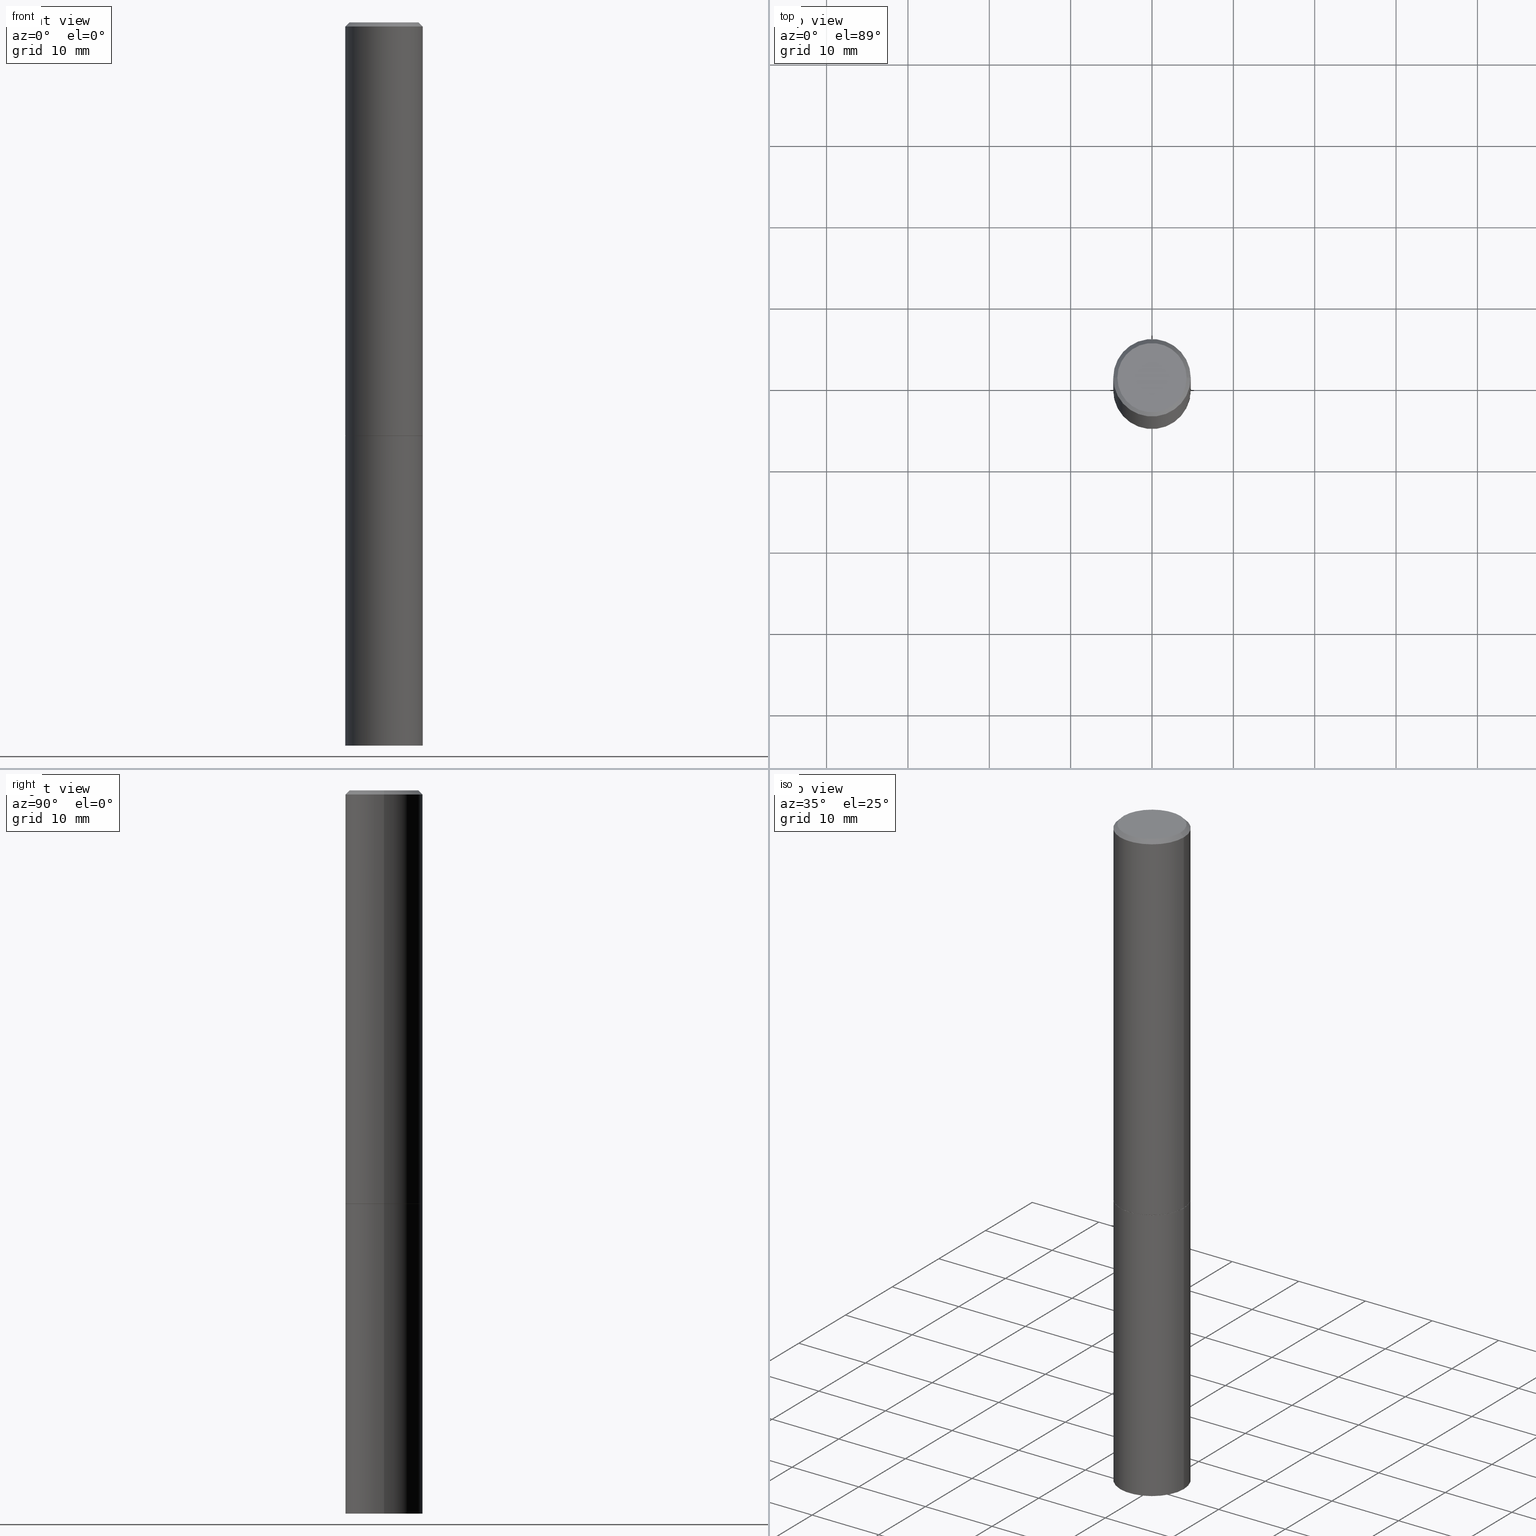
[diagram: canonical four-view strip — front | top / right | iso, engineering-drawing reading convention]
A machine part, canonical four-view strip (front | top / right | iso — engineering-drawing reading convention). The complete STEP part file that produces these views, byte-faithful:
ISO-10303-21;
HEADER;
FILE_DESCRIPTION (( 'STEP AP203' ),
    '1' );
FILE_NAME ('77163.STEP',
    '2024-02-29T15:28:20',
    ( '' ),
    ( '' ),
    'SwSTEP 2.0',
    'SolidWorks 2023',
    '' );
FILE_SCHEMA (( 'CONFIG_CONTROL_DESIGN' ));
ENDSEC;

DATA;
#1 = DIRECTION ( 'NONE',  ( -2.445468806185136597E-29, 3.491481338843145583E-15, 1.000000000000000000 ) ) ;
#2 = DIRECTION ( 'NONE',  ( -2.445468806185136597E-29, 3.491481338843145583E-15, 1.000000000000000000 ) ) ;
#3 = CC_DESIGN_PERSON_AND_ORGANIZATION_ASSIGNMENT ( #56, #94, ( #172 ) ) ;
#4 = DIRECTION ( 'NONE',  ( 1.000000000000000000, -6.982962677686265922E-15, 0.000000000000000000 ) ) ;
#5 = DATE_AND_TIME ( #126, #216 ) ;
#6 = ADVANCED_FACE ( 'NONE', ( #211 ), #263, .T. ) ;
#7 = DIRECTION ( 'NONE',  ( -2.438088387897960049E-29, 3.491481338843145188E-15, 1.000000000000000000 ) ) ;
#8 = CLOSED_SHELL ( 'NONE', ( #37, #294, #266, #242 ) ) ;
#9 = CC_DESIGN_SECURITY_CLASSIFICATION ( #156, ( #172 ) ) ;
#10 = EDGE_LOOP ( 'NONE', ( #83, #267, #236, #87 ) ) ;
#11 = DIRECTION ( 'NONE',  ( -2.445468806185136597E-29, 3.491481338843145583E-15, 1.000000000000000000 ) ) ;
#12 = CARTESIAN_POINT ( 'NONE',  ( 4.890937612370283668E-31, -6.982962677686305168E-17, -0.02000000000000004205 ) ) ;
#13 = EDGE_LOOP ( 'NONE', ( #100, #41, #136, #193 ) ) ;
#14 = PLANE ( 'NONE',  #116 ) ;
#15 = CIRCLE ( 'NONE', #238, 0.1865000000000000546 ) ;
#16 = CC_DESIGN_DATE_AND_TIME_ASSIGNMENT ( #189, #280, ( #156 ) ) ;
#17 = CIRCLE ( 'NONE', #26, 0.1875000000000000278 ) ;
#18 = CC_DESIGN_APPROVAL ( #25, ( #172 ) ) ;
#19 = DIRECTION ( 'NONE',  ( -2.445468806185136597E-29, 3.491481338843145583E-15, 1.000000000000000000 ) ) ;
#20 = ORIENTED_EDGE ( 'NONE', *, *, #158, .F. ) ;
#21 = APPROVAL_STATUS ( 'not_yet_approved' ) ;
#22 = EDGE_CURVE ( 'NONE', #324, #35, #128, .T. ) ;
#23 = CLOSED_SHELL ( 'NONE', ( #129, #360, #135, #6, #284, #235, #309, #42 ) ) ;
#24 = CARTESIAN_POINT ( 'NONE',  ( 0.1874999999999998890, -1.309305502066174022E-15, 9.142831454617374006E-30 ) ) ;
#25 = APPROVAL ( #363, 'UNSPECIFIED' ) ;
#26 = AXIS2_PLACEMENT_3D ( 'NONE', #350, #265, #124 ) ;
#27 = PRODUCT ( '77163', '77163', '', ( #338 ) ) ;
#28 = PERSON_AND_ORGANIZATION_ROLE ( 'classification_officer' ) ;
#29 = DIRECTION ( 'NONE',  ( -1.000000000000000000, 6.982962677686265133E-15, 0.000000000000000000 ) ) ;
#30 = VERTEX_POINT ( 'NONE', #49 ) ;
#31 = SHAPE_DEFINITION_REPRESENTATION ( #353, #256 ) ;
#32 = VECTOR ( 'NONE', #174, 39.37007874015748143 ) ;
#33 = LOCAL_TIME ( 10, 28, 20.00000000000000000, #167 ) ;
#34 = CARTESIAN_POINT ( 'NONE',  ( 4.890937612370273194E-29, -6.982962677686291165E-15, -2.000000000000000000 ) ) ;
#35 = VERTEX_POINT ( 'NONE', #140 ) ;
#36 = DIRECTION ( 'NONE',  ( 1.000000000000000000, -6.982962677686265922E-15, 4.876176775795935793E-29 ) ) ;
#37 = ADVANCED_FACE ( 'NONE', ( #109 ), #163, .T. ) ;
#38 = CARTESIAN_POINT ( 'NONE',  ( -0.1874999999999997502, 1.239475875289309935E-15, -0.02000000000000004205 ) ) ;
#39 = AXIS2_PLACEMENT_3D ( 'NONE', #159, #133, #102 ) ;
#40 = ORGANIZATION ( 'UNSPECIFIED', 'UNSPECIFIED', '' ) ;
#41 = ORIENTED_EDGE ( 'NONE', *, *, #272, .T. ) ;
#42 = ADVANCED_FACE ( 'NONE', ( #143 ), #278, .F. ) ;
#43 = ORIENTED_EDGE ( 'NONE', *, *, #180, .F. ) ;
#44 = DIRECTION ( 'NONE',  ( 1.000000000000000000, -6.982962677686265133E-15, 0.000000000000000000 ) ) ;
#45 = ORIENTED_EDGE ( 'NONE', *, *, #348, .T. ) ;
#46 = DIRECTION ( 'NONE',  ( 2.438088387897960049E-29, -3.491481338843145188E-15, -1.000000000000000000 ) ) ;
#47 = APPROVAL_ROLE ( '' ) ;
#48 = CIRCLE ( 'NONE', #268, 0.1874999999999997502 ) ;
#49 = CARTESIAN_POINT ( 'NONE',  ( 0.1875000000000000278, -1.352949018801718277E-14, -3.500000000000000000 ) ) ;
#50 = LINE ( 'NONE', #310, #254 ) ;
#51 = CARTESIAN_POINT ( 'NONE',  ( 0.1674999999999997602, -1.252653207992876711E-15, 4.268512490108880748E-18 ) ) ;
#52 = DIRECTION ( 'NONE',  ( 0.7071067811864147901, -2.468850131080866299E-15, 0.7071067811866802444 ) ) ;
#53 = DIRECTION ( 'NONE',  ( 1.000000000000000000, 0.000000000000000000, 0.000000000000000000 ) ) ;
#54 = MANIFOLD_SOLID_BREP ( 'Body-Move/Copy2[2]', #23 ) ;
#55 = AXIS2_PLACEMENT_3D ( 'NONE', #228, #219, #355 ) ;
#56 = PERSON_AND_ORGANIZATION ( #110, #40 ) ;
#57 = DIRECTION ( 'NONE',  ( 1.000000000000000000, -6.982962677686265922E-15, 0.000000000000000000 ) ) ;
#58 = EDGE_CURVE ( 'NONE', #346, #130, #134, .T. ) ;
#59 = ORIENTED_EDGE ( 'NONE', *, *, #168, .F. ) ;
#60 = ORIENTED_EDGE ( 'NONE', *, *, #123, .F. ) ;
#61 = CARTESIAN_POINT ( 'NONE',  ( 4.890937612370283668E-31, -6.982962677686305168E-17, -0.02000000000000004205 ) ) ;
#62 = AXIS2_PLACEMENT_3D ( 'NONE', #185, #288, #225 ) ;
#63 =( GEOMETRIC_REPRESENTATION_CONTEXT ( 3 ) GLOBAL_UNCERTAINTY_ASSIGNED_CONTEXT ( ( #95 ) ) GLOBAL_UNIT_ASSIGNED_CONTEXT ( ( #113, #358, #149 ) ) REPRESENTATION_CONTEXT ( 'NONE', 'WORKASPACE' ) );
#64 = CARTESIAN_POINT ( 'NONE',  ( 4.890937612370283668E-31, -6.982962677686305168E-17, -0.02000000000000004205 ) ) ;
#65 = VERTEX_POINT ( 'NONE', #352 ) ;
#66 = DIRECTION ( 'NONE',  ( -2.445468806185136597E-29, 3.491481338843145583E-15, 1.000000000000000000 ) ) ;
#67 = PRODUCT_RELATED_PRODUCT_CATEGORY ( 'detail', '', ( #27 ) ) ;
#68 = ORIENTED_EDGE ( 'NONE', *, *, #176, .T. ) ;
#69 = CARTESIAN_POINT ( 'NONE',  ( -1.043851414335219820E-46, 1.490343170380447200E-32, 4.268512490100411279E-18 ) ) ;
#70 = FACE_OUTER_BOUND ( 'NONE', #317, .T. ) ;
#71 = CIRCLE ( 'NONE', #281, 0.1875000000000000278 ) ;
#72 = DIRECTION ( 'NONE',  ( -2.445468806185136597E-29, 3.491481338843145583E-15, 1.000000000000000000 ) ) ;
#73 = CC_DESIGN_PERSON_AND_ORGANIZATION_ASSIGNMENT ( #345, #177, ( #172 ) ) ;
#74 = ORIENTED_EDGE ( 'NONE', *, *, #248, .T. ) ;
#75 = DIRECTION ( 'NONE',  ( 1.000000000000000000, -6.982962677686265133E-15, 0.000000000000000000 ) ) ;
#76 = DIRECTION ( 'NONE',  ( 2.438088387897960049E-29, -3.491481338843145188E-15, -1.000000000000000000 ) ) ;
#77 = APPLICATION_CONTEXT ( 'configuration controlled 3d designs of mechanical parts and assemblies' ) ;
#78 = PERSON_AND_ORGANIZATION ( #110, #40 ) ;
#79 = EDGE_CURVE ( 'NONE', #112, #346, #201, .T. ) ;
#80 = AXIS2_PLACEMENT_3D ( 'NONE', #286, #323, #4 ) ;
#81 = DATE_AND_TIME ( #337, #122 ) ;
#82 = DATE_AND_TIME ( #232, #33 ) ;
#83 = ORIENTED_EDGE ( 'NONE', *, *, #22, .F. ) ;
#84 = CC_DESIGN_PERSON_AND_ORGANIZATION_ASSIGNMENT ( #285, #28, ( #156 ) ) ;
#85 = CARTESIAN_POINT ( 'NONE',  ( 0.1865000000000000546, -8.285285217074779370E-15, -2.000000000000000000 ) ) ;
#86 = ORIENTED_EDGE ( 'NONE', *, *, #289, .F. ) ;
#87 = ORIENTED_EDGE ( 'NONE', *, *, #289, .T. ) ;
#88 = DIRECTION ( 'NONE',  ( -2.445468806185136597E-29, 3.491481338843145583E-15, 1.000000000000000000 ) ) ;
#89 = CONICAL_SURFACE ( 'NONE', #196, 0.1874999999999997502, 0.7853981633974469467 ) ;
#90 = APPROVAL_PERSON_ORGANIZATION ( #253, #25, #47 ) ;
#91 = DIMENSIONAL_EXPONENTS ( 1.000000000000000000, 0.000000000000000000, 0.000000000000000000, 0.000000000000000000, 0.000000000000000000, 0.000000000000000000, 0.000000000000000000 ) ;
#92 = EDGE_LOOP ( 'NONE', ( #292, #329 ) ) ;
#93 = CARTESIAN_POINT ( 'NONE',  ( -0.1874999999999997502, 1.239475875289309935E-15, -0.02000000000000004205 ) ) ;
#94 = PERSON_AND_ORGANIZATION_ROLE ( 'design_supplier' ) ;
#95 = UNCERTAINTY_MEASURE_WITH_UNIT (LENGTH_MEASURE( 1.000000000000000082E-05 ), #113, 'distance_accuracy_value', 'NONE');
#96 = DIRECTION ( 'NONE',  ( 1.000000000000000000, -6.982962677686265922E-15, 4.875936752492899929E-29 ) ) ;
#97 = AXIS2_PLACEMENT_3D ( 'NONE', #114, #76, #334 ) ;
#98 = CC_DESIGN_PERSON_AND_ORGANIZATION_ASSIGNMENT ( #335, #250, ( #27 ) ) ;
#99 = VERTEX_POINT ( 'NONE', #244 ) ;
#100 = ORIENTED_EDGE ( 'NONE', *, *, #168, .T. ) ;
#101 = VERTEX_POINT ( 'NONE', #160 ) ;
#102 = DIRECTION ( 'NONE',  ( 1.000000000000000000, -6.982962677686266711E-15, 0.000000000000000000 ) ) ;
#103 = CARTESIAN_POINT ( 'NONE',  ( -0.1865000000000000546, -5.652502021145481134E-15, -2.000000000000000000 ) ) ;
#104 = LINE ( 'NONE', #38, #366 ) ;
#105 = PRODUCT_DEFINITION ( 'UNKNOWN', '', #172, #316 ) ;
#106 = ORIENTED_EDGE ( 'NONE', *, *, #318, .T. ) ;
#107 = DIRECTION ( 'NONE',  ( -2.445468806185136597E-29, 3.491481338843145583E-15, 1.000000000000000000 ) ) ;
#108 = CIRCLE ( 'NONE', #312, 0.1674999999999997602 ) ;
#109 = FACE_OUTER_BOUND ( 'NONE', #296, .T. ) ;
#110 = PERSON ( 'UNSPECIFIED', 'UNSPECIFIED', 'UNSPECIFIED', ('UNSPECIFIED'), ('UNSPECIFIED'), ('UNSPECIFIED') ) ;
#112 = VERTEX_POINT ( 'NONE', #103 ) ;
#111 = APPLICATION_PROTOCOL_DEFINITION ( 'international standard', 'config_control_design', 1994, #77 ) ;
#113 =( CONVERSION_BASED_UNIT ( 'INCH', #255 ) LENGTH_UNIT ( ) NAMED_UNIT ( #91 ) );
#114 = CARTESIAN_POINT ( 'NONE',  ( 1.169646248512447820E-15, 0.1674999999999997602, -5.826888680111757675E-16 ) ) ;
#115 = EDGE_CURVE ( 'NONE', #99, #324, #188, .T. ) ;
#116 = AXIS2_PLACEMENT_3D ( 'NONE', #141, #46, #249 ) ;
#117 = CARTESIAN_POINT ( 'NONE',  ( -0.1875000000000000278, 1.332267629550188046E-15, -9.223003294227947991E-30 ) ) ;
#118 = FACE_OUTER_BOUND ( 'NONE', #145, .T. ) ;
#119 = LINE ( 'NONE', #24, #127 ) ;
#120 = EDGE_CURVE ( 'NONE', #65, #347, #271, .T. ) ;
#121 = CIRCLE ( 'NONE', #320, 0.1874999999999997502 ) ;
#122 = LOCAL_TIME ( 10, 28, 20.00000000000000000, #230 ) ;
#123 = EDGE_CURVE ( 'NONE', #324, #99, #108, .T. ) ;
#124 = DIRECTION ( 'NONE',  ( 1.000000000000000000, -6.982962677686266711E-15, 0.000000000000000000 ) ) ;
#125 = CARTESIAN_POINT ( 'NONE',  ( 0.1875000000000000278, -8.288776698413622377E-15, -1.998999999999999666 ) ) ;
#126 = CALENDAR_DATE ( 2024, 29, 2 ) ;
#127 = VECTOR ( 'NONE', #252, 39.37007874015748143 ) ;
#128 = LINE ( 'NONE', #154, #336 ) ;
#129 = ADVANCED_FACE ( 'NONE', ( #261 ), #215, .T. ) ;
#130 = VERTEX_POINT ( 'NONE', #125 ) ;
#131 = CARTESIAN_POINT ( 'NONE',  ( 4.890937612370272633E-29, -6.982962677686290376E-15, -1.999999999999999778 ) ) ;
#132 = CIRCLE ( 'NONE', #234, 0.1875000000000000278 ) ;
#133 = DIRECTION ( 'NONE',  ( -2.445468806185136597E-29, 3.491481338843145583E-15, 1.000000000000000000 ) ) ;
#134 = LINE ( 'NONE', #197, #356 ) ;
#135 = ADVANCED_FACE ( 'NONE', ( #181 ), #89, .T. ) ;
#136 = ORIENTED_EDGE ( 'NONE', *, *, #318, .F. ) ;
#137 = PLANE ( 'NONE',  #55 ) ;
#138 = EDGE_LOOP ( 'NONE', ( #59, #290 ) ) ;
#139 = CYLINDRICAL_SURFACE ( 'NONE', #258, 0.1874999999999998890 ) ;
#140 = CARTESIAN_POINT ( 'NONE',  ( 0.1874999999999997502, -1.356173001359023494E-15, -0.02000000000000004205 ) ) ;
#141 = CARTESIAN_POINT ( 'NONE',  ( 1.309305502066260600E-15, 0.1874999999999877875, -3.500000000000000444 ) ) ;
#142 = AXIS2_PLACEMENT_3D ( 'NONE', #297, #169, #327 ) ;
#143 = FACE_OUTER_BOUND ( 'NONE', #359, .T. ) ;
#145 = EDGE_LOOP ( 'NONE', ( #106, #351, #331, #164 ) ) ;
#144 = CALENDAR_DATE ( 2024, 29, 2 ) ;
#146 = CARTESIAN_POINT ( 'NONE',  ( -0.1875000000000000278, -8.269306052268462011E-15, -1.999999999999999778 ) ) ;
#147 = DATE_TIME_ROLE ( 'creation_date' ) ;
#148 = AXIS2_PLACEMENT_3D ( 'NONE', #155, #66, #179 ) ;
#149 =( NAMED_UNIT ( * ) SI_UNIT ( $, .STERADIAN. ) SOLID_ANGLE_UNIT ( ) );
#150 = CC_DESIGN_DATE_AND_TIME_ASSIGNMENT ( #81, #147, ( #105 ) ) ;
#151 = CARTESIAN_POINT ( 'NONE',  ( -1.043851414335219820E-46, 1.490343170380447200E-32, 4.268512490100411279E-18 ) ) ;
#152 = LOCAL_TIME ( 10, 28, 20.00000000000000000, #210 ) ;
#153 = DIRECTION ( 'NONE',  ( -2.445468806185136597E-29, 3.491481338843145583E-15, 1.000000000000000000 ) ) ;
#154 = CARTESIAN_POINT ( 'NONE',  ( 0.1874999999999997502, -1.356173001359023494E-15, -0.02000000000000004205 ) ) ;
#155 = CARTESIAN_POINT ( 'NONE',  ( 8.559140821647976968E-29, -1.222018468595100934E-14, -3.500000000000000000 ) ) ;
#156 = SECURITY_CLASSIFICATION ( '', '', #233 ) ;
#157 = DIRECTION ( 'NONE',  ( -2.445468806185136597E-29, 3.491481338843145583E-15, 1.000000000000000000 ) ) ;
#158 = EDGE_CURVE ( 'NONE', #101, #347, #328, .T. ) ;
#159 = CARTESIAN_POINT ( 'NONE',  ( 4.888492143564087030E-29, -6.979471196347446580E-15, -1.998999999999999666 ) ) ;
#160 = CARTESIAN_POINT ( 'NONE',  ( 0.1875000000000000278, -8.292268179752465385E-15, -1.999999999999999778 ) ) ;
#161 = FACE_OUTER_BOUND ( 'NONE', #214, .T. ) ;
#162 = ORIENTED_EDGE ( 'NONE', *, *, #180, .T. ) ;
#163 = CYLINDRICAL_SURFACE ( 'NONE', #184, 0.1875000000000000278 ) ;
#164 = ORIENTED_EDGE ( 'NONE', *, *, #348, .F. ) ;
#165 = AXIS2_PLACEMENT_3D ( 'NONE', #131, #153, #343 ) ;
#166 = DIRECTION ( 'NONE',  ( -0.7071067811864147901, 7.493145998869874533E-15, 0.7071067811866802444 ) ) ;
#167 = COORDINATED_UNIVERSAL_TIME_OFFSET ( 5, 0, .BEHIND. ) ;
#168 = EDGE_CURVE ( 'NONE', #346, #112, #15, .T. ) ;
#169 = DIRECTION ( 'NONE',  ( -2.445468806185136597E-29, 3.491481338843145583E-15, 1.000000000000000000 ) ) ;
#170 = EDGE_CURVE ( 'NONE', #347, #101, #17, .T. ) ;
#171 = CYLINDRICAL_SURFACE ( 'NONE', #264, 0.1874999999999998890 ) ;
#172 = PRODUCT_DEFINITION_FORMATION_WITH_SPECIFIED_SOURCE ( 'ANY', '', #27, .NOT_KNOWN. ) ;
#173 =( LENGTH_UNIT ( ) NAMED_UNIT ( * ) SI_UNIT ( $, .METRE. ) );
#174 = DIRECTION ( 'NONE',  ( -2.445468806185136877E-29, 3.491481338843145188E-15, 1.000000000000000000 ) ) ;
#175 = VECTOR ( 'NONE', #166, 39.37007874015748143 ) ;
#176 = EDGE_CURVE ( 'NONE', #30, #65, #302, .T. ) ;
#177 = PERSON_AND_ORGANIZATION_ROLE ( 'creator' ) ;
#178 = DIRECTION ( 'NONE',  ( 1.000000000000000000, -6.982962677686265922E-15, 0.000000000000000000 ) ) ;
#179 = DIRECTION ( 'NONE',  ( 1.000000000000000000, -6.982962677686261189E-15, 0.000000000000000000 ) ) ;
#180 = EDGE_CURVE ( 'NONE', #298, #130, #132, .T. ) ;
#181 = FACE_OUTER_BOUND ( 'NONE', #243, .T. ) ;
#182 = DIRECTION ( 'NONE',  ( 2.445468806185136597E-29, -3.491481338843145583E-15, -1.000000000000000000 ) ) ;
#183 = ORIENTED_EDGE ( 'NONE', *, *, #325, .T. ) ;
#184 = AXIS2_PLACEMENT_3D ( 'NONE', #220, #301, #229 ) ;
#185 = CARTESIAN_POINT ( 'NONE',  ( 0.000000000000000000, 0.000000000000000000, 0.000000000000000000 ) ) ;
#186 = APPROVAL_DATE_TIME ( #5, #205 ) ;
#187 = DIRECTION ( 'NONE',  ( 1.000000000000000000, -6.982962677686265922E-15, 4.875936752492899929E-29 ) ) ;
#188 = CIRCLE ( 'NONE', #339, 0.1674999999999997602 ) ;
#189 = DATE_AND_TIME ( #204, #152 ) ;
#190 = ORIENTED_EDGE ( 'NONE', *, *, #342, .T. ) ;
#191 = LINE ( 'NONE', #295, #175 ) ;
#192 = CARTESIAN_POINT ( 'NONE',  ( 4.890937612370283668E-31, -6.982962677686305168E-17, -0.02000000000000004205 ) ) ;
#193 = ORIENTED_EDGE ( 'NONE', *, *, #58, .F. ) ;
#194 = APPROVAL ( #21, 'UNSPECIFIED' ) ;
#195 = PERSON_AND_ORGANIZATION ( #110, #40 ) ;
#196 = AXIS2_PLACEMENT_3D ( 'NONE', #64, #217, #287 ) ;
#197 = CARTESIAN_POINT ( 'NONE',  ( 0.1865000000000000546, -8.285285217074779370E-15, -2.000000000000000000 ) ) ;
#198 = LINE ( 'NONE', #203, #344 ) ;
#199 = APPROVAL_DATE_TIME ( #82, #25 ) ;
#200 = DIRECTION ( 'NONE',  ( 0.000000000000000000, 0.000000000000000000, 1.000000000000000000 ) ) ;
#201 = CIRCLE ( 'NONE', #142, 0.1865000000000000546 ) ;
#202 = APPROVAL_PERSON_ORGANIZATION ( #78, #194, #304 ) ;
#203 = CARTESIAN_POINT ( 'NONE',  ( 0.1875000000000000278, -1.309305502066175008E-15, 9.142831454617381013E-30 ) ) ;
#204 = CALENDAR_DATE ( 2024, 29, 2 ) ;
#205 = APPROVAL ( #259, 'UNSPECIFIED' ) ;
#206 = ORIENTED_EDGE ( 'NONE', *, *, #123, .T. ) ;
#207 = CARTESIAN_POINT ( 'NONE',  ( 4.888492143564087030E-29, -6.979471196347446580E-15, -1.998999999999999666 ) ) ;
#208 = CIRCLE ( 'NONE', #39, 0.1875000000000000278 ) ;
#209 = CC_DESIGN_PERSON_AND_ORGANIZATION_ASSIGNMENT ( #195, #300, ( #105 ) ) ;
#210 = COORDINATED_UNIVERSAL_TIME_OFFSET ( 5, 0, .BEHIND. ) ;
#211 = FACE_OUTER_BOUND ( 'NONE', #10, .T. ) ;
#212 = ORIENTED_EDGE ( 'NONE', *, *, #115, .T. ) ;
#213 = PERSON_AND_ORGANIZATION ( #110, #40 ) ;
#214 = EDGE_LOOP ( 'NONE', ( #245, #162, #45, #86 ) ) ;
#215 = CONICAL_SURFACE ( 'NONE', #293, 0.1865000000000000546, 0.7853981633972606513 ) ;
#216 = LOCAL_TIME ( 10, 28, 20.00000000000000000, #314 ) ;
#217 = DIRECTION ( 'NONE',  ( 2.445468806185136597E-29, -3.491481338843145583E-15, -1.000000000000000000 ) ) ;
#218 = ORIENTED_EDGE ( 'NONE', *, *, #120, .T. ) ;
#219 = DIRECTION ( 'NONE',  ( 2.438088387897960049E-29, -3.491481338843145188E-15, -1.000000000000000000 ) ) ;
#220 = CARTESIAN_POINT ( 'NONE',  ( 0.000000000000000000, 0.000000000000000000, 0.000000000000000000 ) ) ;
#221 = CONICAL_SURFACE ( 'NONE', #80, 0.1865000000000000546, 0.7853981633972606513 ) ;
#222 = DIRECTION ( 'NONE',  ( 1.000000000000000000, -6.982962677686265922E-15, 4.876176775795935793E-29 ) ) ;
#223 = EDGE_LOOP ( 'NONE', ( #260, #341, #276, #43 ) ) ;
#224 = DIRECTION ( 'NONE',  ( 0.7071067811865465735, -7.319954787623252890E-15, -0.7071067811865484609 ) ) ;
#225 = DIRECTION ( 'NONE',  ( 1.000000000000000000, -6.982962677686265922E-15, 4.876176775795935793E-29 ) ) ;
#226 = COORDINATED_UNIVERSAL_TIME_OFFSET ( 5, 0, .BEHIND. ) ;
#227 = DIRECTION ( 'NONE',  ( 1.000000000000000000, -6.982962677686265922E-15, 4.876176775795935793E-29 ) ) ;
#228 = CARTESIAN_POINT ( 'NONE',  ( 1.309305502066224115E-15, 0.1874999999999930611, -2.000000000000000444 ) ) ;
#229 = DIRECTION ( 'NONE',  ( 1.000000000000000000, -6.982962677686265922E-15, 4.876176775795935793E-29 ) ) ;
#230 = COORDINATED_UNIVERSAL_TIME_OFFSET ( 5, 0, .BEHIND. ) ;
#231 = CARTESIAN_POINT ( 'NONE',  ( 8.559140821647976968E-29, -1.222018468595100934E-14, -3.500000000000000000 ) ) ;
#232 = CALENDAR_DATE ( 2024, 29, 2 ) ;
#233 = SECURITY_CLASSIFICATION_LEVEL ( 'unclassified' ) ;
#234 = AXIS2_PLACEMENT_3D ( 'NONE', #207, #88, #237 ) ;
#235 = ADVANCED_FACE ( 'NONE', ( #313 ), #221, .T. ) ;
#236 = ORIENTED_EDGE ( 'NONE', *, *, #257, .T. ) ;
#237 = DIRECTION ( 'NONE',  ( 1.000000000000000000, -6.982962677686266711E-15, 0.000000000000000000 ) ) ;
#238 = AXIS2_PLACEMENT_3D ( 'NONE', #34, #157, #178 ) ;
#239 = VERTEX_POINT ( 'NONE', #93 ) ;
#240 = FACE_OUTER_BOUND ( 'NONE', #354, .T. ) ;
#241 = AXIS2_PLACEMENT_3D ( 'NONE', #279, #200, #53 ) ;
#242 = ADVANCED_FACE ( 'NONE', ( #240 ), #315, .T. ) ;
#243 = EDGE_LOOP ( 'NONE', ( #60, #269, #74, #246 ) ) ;
#244 = CARTESIAN_POINT ( 'NONE',  ( -0.1674999999999997602, 1.204561061900878878E-15, 4.268512490092109750E-18 ) ) ;
#245 = ORIENTED_EDGE ( 'NONE', *, *, #364, .F. ) ;
#246 = ORIENTED_EDGE ( 'NONE', *, *, #257, .F. ) ;
#247 = CARTESIAN_POINT ( 'NONE',  ( 0.000000000000000000, 0.000000000000000000, 0.000000000000000000 ) ) ;
#248 = EDGE_CURVE ( 'NONE', #35, #239, #121, .T. ) ;
#249 = DIRECTION ( 'NONE',  ( -1.000000000000000000, 6.982962677686265922E-15, -4.876176775795935793E-29 ) ) ;
#250 = PERSON_AND_ORGANIZATION_ROLE ( 'design_owner' ) ;
#251 = CARTESIAN_POINT ( 'NONE',  ( 4.890937612370273194E-29, -6.982962677686291165E-15, -2.000000000000000000 ) ) ;
#252 = DIRECTION ( 'NONE',  ( -2.445468806185136877E-29, 3.491481338843145188E-15, 1.000000000000000000 ) ) ;
#253 = PERSON_AND_ORGANIZATION ( #110, #40 ) ;
#254 = VECTOR ( 'NONE', #308, 39.37007874015748143 ) ;
#255 = LENGTH_MEASURE_WITH_UNIT ( LENGTH_MEASURE( 0.02539999999999999897 ), #173 );
#256 = ADVANCED_BREP_SHAPE_REPRESENTATION ( '77163', ( #306, #54, #241 ), #63 ) ;
#257 = EDGE_CURVE ( 'NONE', #99, #239, #104, .T. ) ;
#258 = AXIS2_PLACEMENT_3D ( 'NONE', #247, #107, #222 ) ;
#259 = APPROVAL_STATUS ( 'not_yet_approved' ) ;
#260 = ORIENTED_EDGE ( 'NONE', *, *, #272, .F. ) ;
#261 = FACE_OUTER_BOUND ( 'NONE', #13, .T. ) ;
#262 = ORIENTED_EDGE ( 'NONE', *, *, #120, .F. ) ;
#263 = CONICAL_SURFACE ( 'NONE', #274, 0.1874999999999997502, 0.7853981633974469467 ) ;
#264 = AXIS2_PLACEMENT_3D ( 'NONE', #330, #19, #227 ) ;
#265 = DIRECTION ( 'NONE',  ( -2.445468806185136597E-29, 3.491481338843145583E-15, 1.000000000000000000 ) ) ;
#266 = ADVANCED_FACE ( 'NONE', ( #70 ), #137, .F. ) ;
#267 = ORIENTED_EDGE ( 'NONE', *, *, #115, .F. ) ;
#268 = AXIS2_PLACEMENT_3D ( 'NONE', #192, #299, #75 ) ;
#269 = ORIENTED_EDGE ( 'NONE', *, *, #22, .T. ) ;
#270 = DIRECTION ( 'NONE',  ( -0.7071067811865465735, 2.468850131082246805E-15, -0.7071067811865484609 ) ) ;
#271 = LINE ( 'NONE', #117, #32 ) ;
#272 = EDGE_CURVE ( 'NONE', #112, #298, #191, .T. ) ;
#273 = FACE_OUTER_BOUND ( 'NONE', #92, .T. ) ;
#274 = AXIS2_PLACEMENT_3D ( 'NONE', #61, #182, #29 ) ;
#275 = CC_DESIGN_APPROVAL ( #205, ( #156 ) ) ;
#276 = ORIENTED_EDGE ( 'NONE', *, *, #58, .T. ) ;
#277 = PLANE ( 'NONE',  #362 ) ;
#278 = PLANE ( 'NONE',  #97 ) ;
#279 = CARTESIAN_POINT ( 'NONE',  ( 0.000000000000000000, 0.000000000000000000, 0.000000000000000000 ) ) ;
#280 = DATE_TIME_ROLE ( 'classification_date' ) ;
#281 = AXIS2_PLACEMENT_3D ( 'NONE', #231, #307, #340 ) ;
#282 = ORIENTED_EDGE ( 'NONE', *, *, #170, .F. ) ;
#283 = APPLICATION_PROTOCOL_DEFINITION ( 'international standard', 'config_control_design', 1994, #311 ) ;
#284 = ADVANCED_FACE ( 'NONE', ( #161 ), #139, .T. ) ;
#285 = PERSON_AND_ORGANIZATION ( #110, #40 ) ;
#286 = CARTESIAN_POINT ( 'NONE',  ( 4.890937612370273194E-29, -6.982962677686291165E-15, -2.000000000000000000 ) ) ;
#287 = DIRECTION ( 'NONE',  ( -1.000000000000000000, 6.982962677686265133E-15, 0.000000000000000000 ) ) ;
#288 = DIRECTION ( 'NONE',  ( -2.445468806185136597E-29, 3.491481338843145583E-15, 1.000000000000000000 ) ) ;
#289 = EDGE_CURVE ( 'NONE', #239, #35, #48, .T. ) ;
#290 = ORIENTED_EDGE ( 'NONE', *, *, #79, .F. ) ;
#291 = FACE_OUTER_BOUND ( 'NONE', #138, .T. ) ;
#292 = ORIENTED_EDGE ( 'NONE', *, *, #176, .F. ) ;
#293 = AXIS2_PLACEMENT_3D ( 'NONE', #319, #1, #57 ) ;
#294 = ADVANCED_FACE ( 'NONE', ( #273 ), #14, .T. ) ;
#295 = CARTESIAN_POINT ( 'NONE',  ( -0.1865000000000000546, -5.657800475493703536E-15, -2.000000000000000000 ) ) ;
#296 = EDGE_LOOP ( 'NONE', ( #68, #218, #20, #322 ) ) ;
#297 = CARTESIAN_POINT ( 'NONE',  ( 4.890937612370273194E-29, -6.982962677686291165E-15, -2.000000000000000000 ) ) ;
#298 = VERTEX_POINT ( 'NONE', #332 ) ;
#299 = DIRECTION ( 'NONE',  ( -2.445468806185136597E-29, 3.491481338843145583E-15, 1.000000000000000000 ) ) ;
#300 = PERSON_AND_ORGANIZATION_ROLE ( 'creator' ) ;
#301 = DIRECTION ( 'NONE',  ( -2.445468806185136597E-29, 3.491481338843145583E-15, 1.000000000000000000 ) ) ;
#302 = CIRCLE ( 'NONE', #148, 0.1875000000000000278 ) ;
#303 = LOCAL_TIME ( 10, 28, 20.00000000000000000, #226 ) ;
#305 = ORIENTED_EDGE ( 'NONE', *, *, #170, .T. ) ;
#304 = APPROVAL_ROLE ( '' ) ;
#306 = MANIFOLD_SOLID_BREP ( 'Body-Move/Copy2[1]', #8 ) ;
#307 = DIRECTION ( 'NONE',  ( -2.445468806185136597E-29, 3.491481338843145583E-15, 1.000000000000000000 ) ) ;
#308 = DIRECTION ( 'NONE',  ( -2.445468806185136877E-29, 3.491481338843145188E-15, 1.000000000000000000 ) ) ;
#309 = ADVANCED_FACE ( 'NONE', ( #291 ), #277, .F. ) ;
#310 = CARTESIAN_POINT ( 'NONE',  ( -0.1874999999999998890, 1.332267629550187060E-15, -9.223003294227942385E-30 ) ) ;
#311 = APPLICATION_CONTEXT ( 'configuration controlled 3d designs of mechanical parts and assemblies' ) ;
#312 = AXIS2_PLACEMENT_3D ( 'NONE', #151, #2, #96 ) ;
#313 = FACE_OUTER_BOUND ( 'NONE', #223, .T. ) ;
#314 = COORDINATED_UNIVERSAL_TIME_OFFSET ( 5, 0, .BEHIND. ) ;
#315 = CYLINDRICAL_SURFACE ( 'NONE', #62, 0.1875000000000000278 ) ;
#316 = DESIGN_CONTEXT ( 'detailed design', #77, 'design' ) ;
#317 = EDGE_LOOP ( 'NONE', ( #326, #305 ) ) ;
#318 = EDGE_CURVE ( 'NONE', #130, #298, #208, .T. ) ;
#319 = CARTESIAN_POINT ( 'NONE',  ( 4.890937612370273194E-29, -6.982962677686291165E-15, -2.000000000000000000 ) ) ;
#320 = AXIS2_PLACEMENT_3D ( 'NONE', #12, #11, #44 ) ;
#321 = APPROVAL_PERSON_ORGANIZATION ( #213, #205, #349 ) ;
#322 = ORIENTED_EDGE ( 'NONE', *, *, #325, .F. ) ;
#323 = DIRECTION ( 'NONE',  ( -2.445468806185136597E-29, 3.491481338843145583E-15, 1.000000000000000000 ) ) ;
#324 = VERTEX_POINT ( 'NONE', #51 ) ;
#325 = EDGE_CURVE ( 'NONE', #30, #101, #198, .T. ) ;
#326 = ORIENTED_EDGE ( 'NONE', *, *, #158, .T. ) ;
#327 = DIRECTION ( 'NONE',  ( 1.000000000000000000, -6.982962677686265922E-15, 0.000000000000000000 ) ) ;
#328 = CIRCLE ( 'NONE', #165, 0.1875000000000000278 ) ;
#329 = ORIENTED_EDGE ( 'NONE', *, *, #342, .F. ) ;
#330 = CARTESIAN_POINT ( 'NONE',  ( 0.000000000000000000, 0.000000000000000000, 0.000000000000000000 ) ) ;
#331 = ORIENTED_EDGE ( 'NONE', *, *, #248, .F. ) ;
#332 = CARTESIAN_POINT ( 'NONE',  ( -0.1875000000000000278, -2.192382782011964724E-15, -1.998999999999999666 ) ) ;
#333 = APPROVAL_DATE_TIME ( #361, #194 ) ;
#334 = DIRECTION ( 'NONE',  ( -1.000000000000000000, 6.982962677686265922E-15, -4.876176775795935793E-29 ) ) ;
#335 = PERSON_AND_ORGANIZATION ( #110, #40 ) ;
#336 = VECTOR ( 'NONE', #224, 39.37007874015748143 ) ;
#337 = CALENDAR_DATE ( 2024, 29, 2 ) ;
#338 = MECHANICAL_CONTEXT ( 'NONE', #311, 'mechanical' ) ;
#339 = AXIS2_PLACEMENT_3D ( 'NONE', #69, #72, #187 ) ;
#340 = DIRECTION ( 'NONE',  ( 1.000000000000000000, -6.982962677686261189E-15, 0.000000000000000000 ) ) ;
#341 = ORIENTED_EDGE ( 'NONE', *, *, #79, .T. ) ;
#342 = EDGE_CURVE ( 'NONE', #65, #30, #71, .T. ) ;
#343 = DIRECTION ( 'NONE',  ( 1.000000000000000000, -6.982962677686266711E-15, 0.000000000000000000 ) ) ;
#344 = VECTOR ( 'NONE', #365, 39.37007874015748143 ) ;
#346 = VERTEX_POINT ( 'NONE', #85 ) ;
#345 = PERSON_AND_ORGANIZATION ( #110, #40 ) ;
#347 = VERTEX_POINT ( 'NONE', #146 ) ;
#348 = EDGE_CURVE ( 'NONE', #130, #35, #119, .T. ) ;
#349 = APPROVAL_ROLE ( '' ) ;
#350 = CARTESIAN_POINT ( 'NONE',  ( 4.890937612370272633E-29, -6.982962677686290376E-15, -1.999999999999999778 ) ) ;
#351 = ORIENTED_EDGE ( 'NONE', *, *, #364, .T. ) ;
#352 = CARTESIAN_POINT ( 'NONE',  ( -0.1875000000000000278, -8.269306052268462011E-15, -3.500000000000000000 ) ) ;
#353 = PRODUCT_DEFINITION_SHAPE ( 'NONE', 'NONE',  #105 ) ;
#354 = EDGE_LOOP ( 'NONE', ( #262, #190, #183, #282 ) ) ;
#355 = DIRECTION ( 'NONE',  ( -1.000000000000000000, 6.982962677686265922E-15, -4.876176775795935793E-29 ) ) ;
#356 = VECTOR ( 'NONE', #52, 39.37007874015748143 ) ;
#357 = CC_DESIGN_APPROVAL ( #194, ( #105 ) ) ;
#358 =( NAMED_UNIT ( * ) PLANE_ANGLE_UNIT ( ) SI_UNIT ( $, .RADIAN. ) );
#359 = EDGE_LOOP ( 'NONE', ( #212, #206 ) ) ;
#360 = ADVANCED_FACE ( 'NONE', ( #118 ), #171, .T. ) ;
#361 = DATE_AND_TIME ( #144, #303 ) ;
#362 = AXIS2_PLACEMENT_3D ( 'NONE', #251, #7, #36 ) ;
#363 = APPROVAL_STATUS ( 'not_yet_approved' ) ;
#364 = EDGE_CURVE ( 'NONE', #298, #239, #50, .T. ) ;
#365 = DIRECTION ( 'NONE',  ( -2.445468806185136877E-29, 3.491481338843145188E-15, 1.000000000000000000 ) ) ;
#366 = VECTOR ( 'NONE', #270, 39.37007874015748143 ) ;
ENDSEC;
END-ISO-10303-21;
